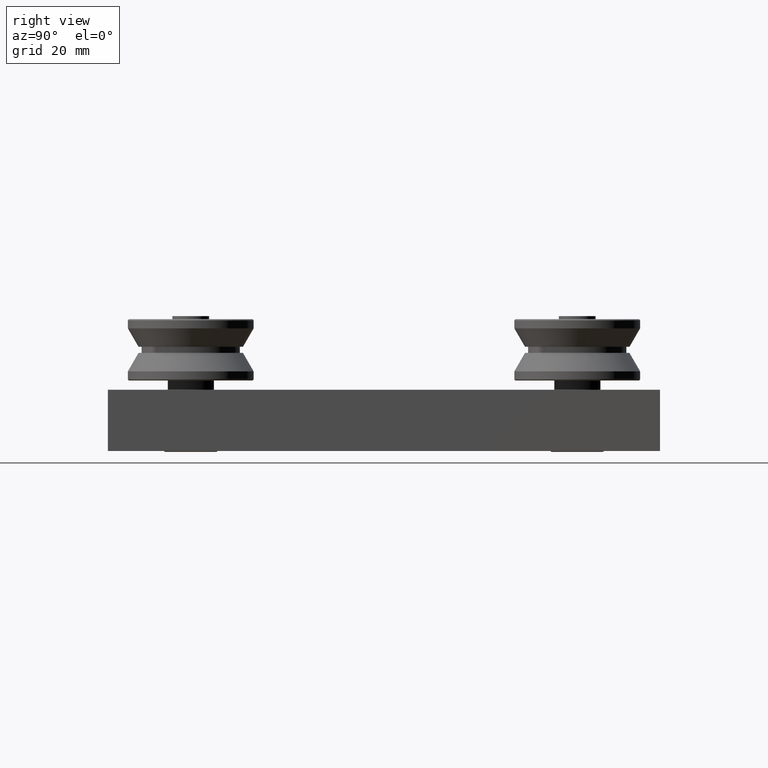
[diagram: clean part render]
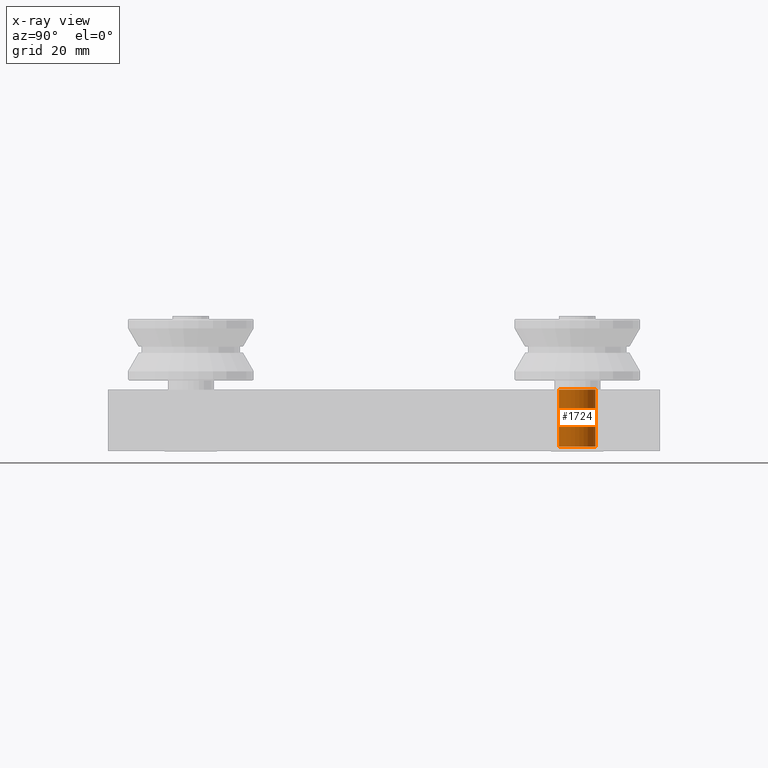
[diagram: x-ray — body ghosted, one internal face saturated and labeled with its STEP entity id]
A machine part, right view, then the same camera in x-ray: the body is ghosted and one INTERNAL B-rep face — a face not visible from any outside direction — is saturated and labeled: STEP entity #1724.
In plain terms, the highlighted cylindrical surface (bore or boss wall) has radius 6 mm, axis along (0, 0, -1).
Its self-contained STEP definition (entity closure, byte-faithful):
#304=FACE_OUTER_BOUND('',#429,.T.);
#429=EDGE_LOOP('',(#1357,#1358,#1359,#1360));
#562=LINE('',#2897,#691);
#691=VECTOR('',#2371,6.);
#812=CIRCLE('',#2056,6.);
#813=CIRCLE('',#2057,6.);
#914=VERTEX_POINT('',#2894);
#915=VERTEX_POINT('',#2896);
#1080=EDGE_CURVE('',#914,#914,#812,.T.);
#1081=EDGE_CURVE('',#914,#915,#562,.T.);
#1082=EDGE_CURVE('',#915,#915,#813,.T.);
#1357=ORIENTED_EDGE('',*,*,#1080,.T.);
#1358=ORIENTED_EDGE('',*,*,#1081,.T.);
#1359=ORIENTED_EDGE('',*,*,#1082,.F.);
#1360=ORIENTED_EDGE('',*,*,#1081,.F.);
#1683=CYLINDRICAL_SURFACE('',#2055,6.);
#1724=ADVANCED_FACE('',(#304),#1683,.T.);
#2055=AXIS2_PLACEMENT_3D('',#2893,#2367,#2368);
#2056=AXIS2_PLACEMENT_3D('',#2895,#2369,#2370);
#2057=AXIS2_PLACEMENT_3D('',#2898,#2372,#2373);
#2367=DIRECTION('center_axis',(0.,0.,1.));
#2368=DIRECTION('ref_axis',(-1.,0.,0.));
#2369=DIRECTION('center_axis',(0.,0.,-1.));
#2370=DIRECTION('ref_axis',(-1.,0.,0.));
#2371=DIRECTION('',(0.,0.,-1.));
#2372=DIRECTION('center_axis',(0.,0.,-1.));
#2373=DIRECTION('ref_axis',(-1.,0.,0.));
#2893=CARTESIAN_POINT('Origin',(0.,0.,32.0386617100371));
#2894=CARTESIAN_POINT('',(6.,7.34788079488412E-16,42.5));
#2895=CARTESIAN_POINT('Origin',(0.,0.,42.5));
#2896=CARTESIAN_POINT('',(6.,7.34788079488412E-16,24.));
#2897=CARTESIAN_POINT('',(6.,7.34788079488412E-16,32.0386617100371));
#2898=CARTESIAN_POINT('Origin',(0.,0.,24.));